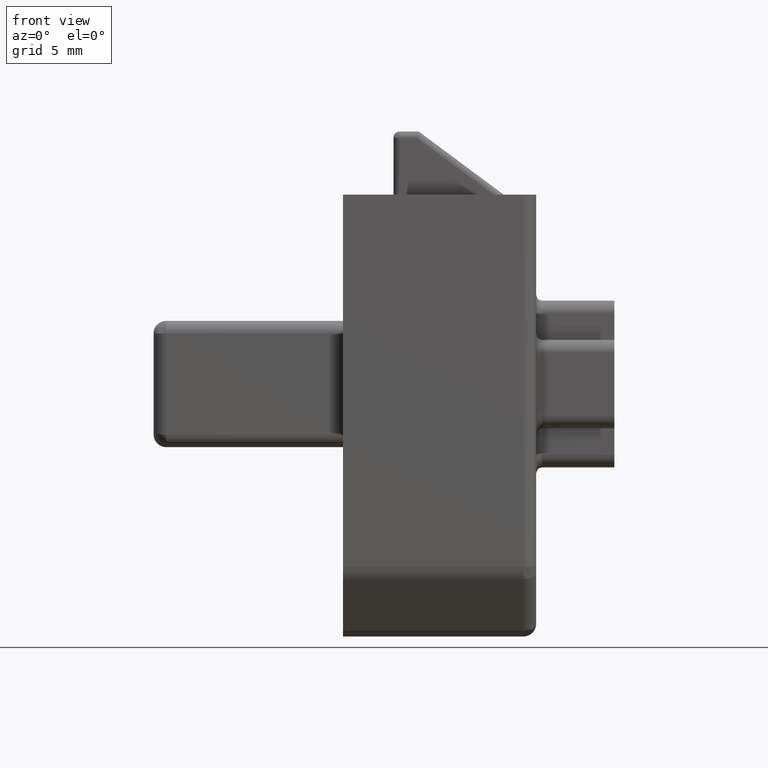
[diagram: clean part render]
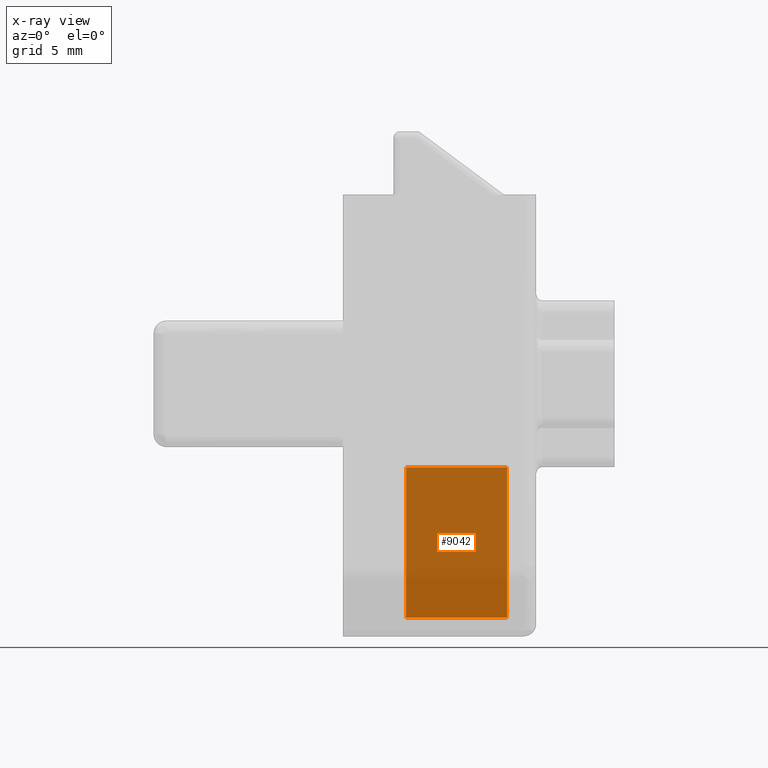
[diagram: x-ray — body ghosted, one internal face saturated and labeled with its STEP entity id]
A machine part, front view, then the same camera in x-ray: the body is ghosted and one INTERNAL B-rep face — a face not visible from any outside direction — is saturated and labeled: STEP entity #9042.
In plain terms, the highlighted face is a freeform B-spline surface patch.
Its self-contained STEP definition (entity closure, byte-faithful):
#8899=CARTESIAN_POINT('',(13.0,5.0,-6.599999053571510));
#8900=VERTEX_POINT('',#8899);
#8906=CARTESIAN_POINT('',(13.0,5.0,-18.500000000000000));
#8907=VERTEX_POINT('',#8906);
#8908=CARTESIAN_POINT('',(13.0,5.0,-18.500000000000000));
#8909=CARTESIAN_POINT('',(13.0,5.0,-6.599999053571510));
#8910=QUASI_UNIFORM_CURVE('',1,(#8908,#8909),.UNSPECIFIED.,.F.,.U.);
#8911=EDGE_CURVE('',#8907,#8900,#8910,.T.);
#9001=CARTESIAN_POINT('',(5.0,5.0,-18.500000000000000));
#9002=VERTEX_POINT('',#9001);
#9008=CARTESIAN_POINT('',(5.0,5.0,-6.599999053571510));
#9009=VERTEX_POINT('',#9008);
#9010=CARTESIAN_POINT('',(5.0,5.0,-18.500000000000000));
#9011=CARTESIAN_POINT('',(5.0,5.0,-6.599999053571510));
#9012=QUASI_UNIFORM_CURVE('',1,(#9010,#9011),.UNSPECIFIED.,.F.,.U.);
#9013=EDGE_CURVE('',#9002,#9009,#9012,.T.);
#9023=CARTESIAN_POINT('',(4.600400015505552,5.0,-19.094405024209600));
#9024=CARTESIAN_POINT('',(4.600400015505552,5.0,-6.005593710179020));
#9025=CARTESIAN_POINT('',(13.399600199071170,5.0,-19.094405024209600));
#9026=CARTESIAN_POINT('',(13.399600199071170,5.0,-6.005593710179020));
#9027=B_SPLINE_SURFACE_WITH_KNOTS('',1,1,((#9023,#9025),(#9024,#9026)),.UNSPECIFIED.,.F.,.F.,.U.,(2,2),(2,2),(0.0,13.088811314030581),(0.0,8.799200183565620),.UNSPECIFIED.);
#9028=ORIENTED_EDGE('',*,*,#8911,.T.);
#9029=CARTESIAN_POINT('',(5.0,5.0,-6.599999053571510));
#9030=CARTESIAN_POINT('',(13.0,5.0,-6.599999053571510));
#9031=QUASI_UNIFORM_CURVE('',1,(#9029,#9030),.UNSPECIFIED.,.F.,.U.);
#9032=EDGE_CURVE('',#9009,#8900,#9031,.T.);
#9033=ORIENTED_EDGE('',*,*,#9032,.F.);
#9034=ORIENTED_EDGE('',*,*,#9013,.F.);
#9035=CARTESIAN_POINT('',(5.0,5.0,-18.500000000000000));
#9036=CARTESIAN_POINT('',(13.0,5.0,-18.500000000000000));
#9037=QUASI_UNIFORM_CURVE('',1,(#9035,#9036),.UNSPECIFIED.,.F.,.U.);
#9038=EDGE_CURVE('',#9002,#8907,#9037,.T.);
#9039=ORIENTED_EDGE('',*,*,#9038,.T.);
#9040=EDGE_LOOP('',(#9028,#9033,#9034,#9039));
#9041=FACE_OUTER_BOUND('',#9040,.T.);
#9042=ADVANCED_FACE('',(#9041),#9027,.F.);